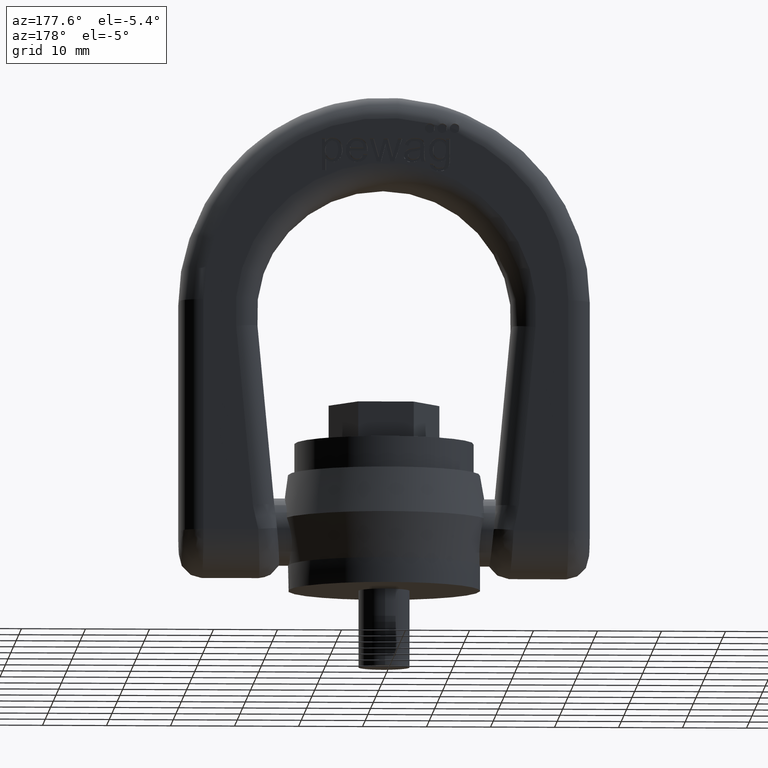
[diagram: clean part render]
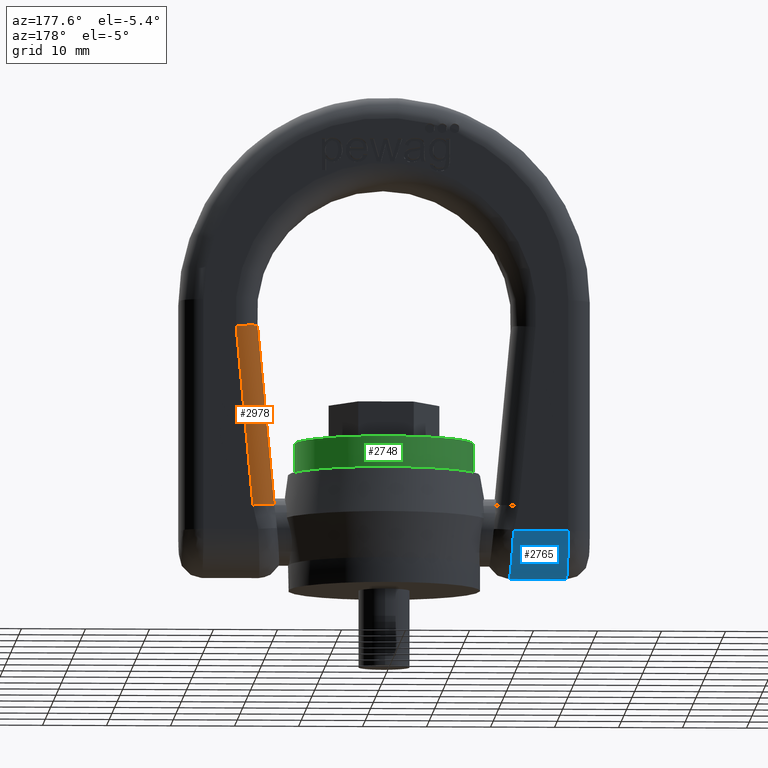
[diagram: same view with three faces highlighted in distinct colors, each labeled with its STEP entity id]
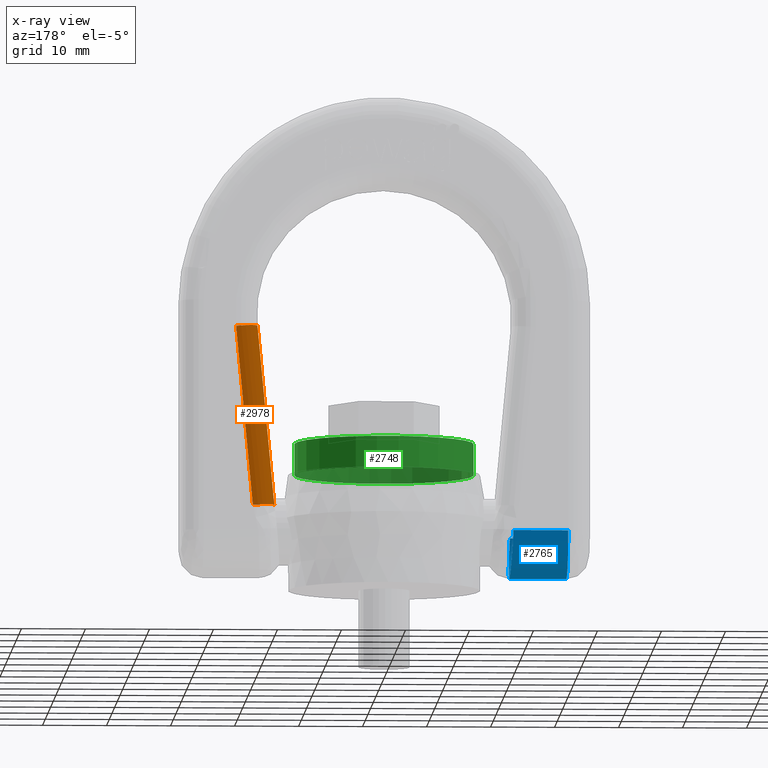
[diagram: x-ray of the same camera — body ghosted, the three highlighted faces saturated]
A machine part, auxiliary view with three faces highlighted in distinct colors.
The next image is the same camera in x-ray (body ghosted, the three faces saturated) — at least one of them is partly hidden behind the body in this view.
Their STEP definitions:

[orange] entity #2978 — the highlighted cylindrical surface (edge-blend (fillet) strip) has radius 3.5 mm, axis along (0.093, -0, 0.9957).
#1840=LINE('',#7093,#2122);
#1934=LINE('',#8275,#2261);
#2122=VECTOR('',#6011,1.);
#2261=VECTOR('',#6266,1.);
#2624=FACE_OUTER_BOUND('',#3334,.T.);
#2978=ADVANCED_FACE('',(#2624),#3001,.T.);
#3001=CYLINDRICAL_SURFACE('',#5820,3.5);
#3334=EDGE_LOOP('',(#4537,#4538,#4539,#4540));
#4537=ORIENTED_EDGE('',*,*,#5553,.T.);
#4538=ORIENTED_EDGE('',*,*,#5094,.F.);
#4539=ORIENTED_EDGE('',*,*,#5555,.F.);
#4540=ORIENTED_EDGE('',*,*,#5305,.F.);
#4675=VERTEX_POINT('',#7088);
#4677=VERTEX_POINT('',#7094);
#4803=VERTEX_POINT('',#8274);
#4804=VERTEX_POINT('',#8276);
#5094=EDGE_CURVE('',#4675,#4677,#1840,.T.);
#5305=EDGE_CURVE('',#4803,#4804,#1934,.T.);
#5553=EDGE_CURVE('',#4803,#4677,#5611,.T.);
#5555=EDGE_CURVE('',#4804,#4675,#5613,.T.);
#5611=CIRCLE('',#5817,3.5);
#5613=CIRCLE('',#5819,3.5);
#5817=AXIS2_PLACEMENT_3D('',#9662,#6600,#6601);
#5819=AXIS2_PLACEMENT_3D('',#9700,#6604,#6605);
#5820=AXIS2_PLACEMENT_3D('',#9701,#6606,#6607);
#6011=DIRECTION('',(-0.0930218178345941,2.17941815051107E-16,-0.995664070561325));
#6266=DIRECTION('',(0.0930218178345941,-2.17941815051107E-16,0.995664070561325));
#6600=DIRECTION('',(0.0930218178345929,-2.17941815051104E-16,0.995664070561325));
#6601=DIRECTION('',(-0.995664070561325,0.,0.0930218178345929));
#6604=DIRECTION('',(0.0930218178345945,-1.84419578486525E-16,0.995664070561325));
#6605=DIRECTION('',(0.995664070561325,0.,-0.0930218178345944));
#6606=DIRECTION('',(0.0930218178345941,-2.17941815051107E-16,0.995664070561325));
#6607=DIRECTION('',(0.995664070561325,0.,-0.0930218178345944));
#7088=CARTESIAN_POINT('',(19.9132814112265,3.49999999999994,41.1395636433081));
#7093=CARTESIAN_POINT('',(19.9132814112265,3.49999999999994,41.1395636433081));
#7094=CARTESIAN_POINT('',(17.2901859316003,3.49999999999995,13.0631189606247));
#8274=CARTESIAN_POINT('',(20.775010178565,6.99999999999995,12.7375425982036));
#8275=CARTESIAN_POINT('',(23.3981056581912,6.99999999999995,40.813987280887));
#8276=CARTESIAN_POINT('',(23.3981056581912,6.99999999999995,40.813987280887));
#9662=CARTESIAN_POINT('',(20.775010178565,3.49999999999995,12.7375425982036));
#9700=CARTESIAN_POINT('',(23.3981056581912,3.49999999999995,40.813987280887));
#9701=CARTESIAN_POINT('',(23.3981056581912,3.49999999999995,40.813987280887));

[blue] entity #2765 — the highlighted cylindrical surface (partial cylindrical patch) has radius 7 mm, axis along (-1, 0, 0).
#320=B_SPLINE_CURVE_WITH_KNOTS('',3,(#6735,#6736,#6737,#6738,#6739,#6740,
#6741,#6742,#6743,#6744),.UNSPECIFIED.,.F.,.F.,(4,2,2,2,4),(0.,0.25,0.5,
0.75,1.),.UNSPECIFIED.);
#1795=LINE('',#6732,#2077);
#1796=LINE('',#6746,#2078);
#2077=VECTOR('',#5930,1.);
#2078=VECTOR('',#5931,1.);
#2428=FACE_OUTER_BOUND('',#3096,.T.);
#2765=ADVANCED_FACE('',(#2428),#2985,.T.);
#2985=CYLINDRICAL_SURFACE('',#5650,6.99999999999996);
#3096=EDGE_LOOP('',(#3429,#3430,#3431,#3432));
#3429=ORIENTED_EDGE('',*,*,#4999,.F.);
#3430=ORIENTED_EDGE('',*,*,#5000,.T.);
#3431=ORIENTED_EDGE('',*,*,#5001,.F.);
#3432=ORIENTED_EDGE('',*,*,#5002,.T.);
#4585=VERTEX_POINT('',#6733);
#4586=VERTEX_POINT('',#6734);
#4587=VERTEX_POINT('',#6745);
#4588=VERTEX_POINT('',#6747);
#4999=EDGE_CURVE('',#4585,#4586,#1795,.T.);
#5000=EDGE_CURVE('',#4585,#4587,#320,.T.);
#5001=EDGE_CURVE('',#4588,#4587,#1796,.T.);
#5002=EDGE_CURVE('',#4588,#4586,#5566,.T.);
#5566=CIRCLE('',#5649,6.99999999999996);
#5649=AXIS2_PLACEMENT_3D('',#6748,#5932,#5933);
#5650=AXIS2_PLACEMENT_3D('',#6749,#5934,#5935);
#5930=DIRECTION('',(-1.,2.34291072916505E-15,8.40256683676266E-16));
#5931=DIRECTION('',(1.,0.,-8.40256683676266E-16));
#5932=DIRECTION('',(1.,0.,-4.83546613512699E-16));
#5933=DIRECTION('',(-4.95635278850519E-16,0.,-1.));
#5934=DIRECTION('',(-1.,1.16551733542192E-15,8.40256683676266E-16));
#5935=DIRECTION('',(-9.91270557701038E-16,-1.,0.));
#6732=CARTESIAN_POINT('',(-1.22103649750215E-14,7.,8.95000000000001));
#6733=CARTESIAN_POINT('',(-19.950753113985,7.00000000000005,8.95000000000002));
#6734=CARTESIAN_POINT('',(-28.5,7.00000000000007,8.95000000000003));
#6735=CARTESIAN_POINT('',(-19.950753113985,6.99999999999999,8.95000000000003));
#6736=CARTESIAN_POINT('',(-19.8519540217033,6.99999999999999,7.10257510705455));
#6737=CARTESIAN_POINT('',(-19.7541847453004,6.24161316817408,5.29206410229056));
#6738=CARTESIAN_POINT('',(-19.6137898898043,3.65767437544527,2.70823357245032));
#6739=CARTESIAN_POINT('',(-19.572150091763,1.84349047945092,1.94951405894923));
#6740=CARTESIAN_POINT('',(-19.572203324973,-1.84717901119788,1.95048642695327));
#6741=CARTESIAN_POINT('',(-19.6139277122954,-3.66041617913441,2.71076825953281));
#6742=CARTESIAN_POINT('',(-19.7540900984752,-6.23966594061746,5.29032402182644));
#6743=CARTESIAN_POINT('',(-19.8519540881459,-6.99999999999994,7.10257634945074));
#6744=CARTESIAN_POINT('',(-19.950753113985,-6.99999999999994,8.95000000000003));
#6745=CARTESIAN_POINT('',(-19.950753113985,-7.,8.95000000000002));
#6746=CARTESIAN_POINT('',(-2.86107400791768E-14,-7.,8.95000000000001));
#6747=CARTESIAN_POINT('',(-28.5,-7.,8.95000000000003));
#6748=CARTESIAN_POINT('',(-28.5,3.32172440595246E-14,8.95000000000003));
#6749=CARTESIAN_POINT('',(32.,-3.72965547335014E-14,8.94999999999998));

[green] entity #2748 — the highlighted cylindrical surface (bore or boss wall) has radius 14 mm, axis along (0, 0, -1).
#2748=ADVANCED_FACE('',(#3015,#3016),#2983,.T.);
#2983=CYLINDRICAL_SURFACE('',#5631,14.);
#3015=FACE_BOUND('',#3076,.T.);
#3016=FACE_BOUND('',#3077,.T.);
#3076=EDGE_LOOP('',(#3350));
#3077=EDGE_LOOP('',(#3351));
#3350=ORIENTED_EDGE('',*,*,#4958,.T.);
#3351=ORIENTED_EDGE('',*,*,#4957,.F.);
#4555=VERTEX_POINT('',#6634);
#4556=VERTEX_POINT('',#6637);
#4957=EDGE_CURVE('',#4555,#4555,#5563,.T.);
#4958=EDGE_CURVE('',#4556,#4556,#5564,.T.);
#5563=CIRCLE('',#5628,14.);
#5564=CIRCLE('',#5630,14.);
#5628=AXIS2_PLACEMENT_3D('',#6633,#5850,#5851);
#5630=AXIS2_PLACEMENT_3D('',#6636,#5854,#5855);
#5631=AXIS2_PLACEMENT_3D('',#6638,#5856,#5857);
#5850=DIRECTION('',(0.,0.,-1.));
#5851=DIRECTION('',(-1.,0.,0.));
#5854=DIRECTION('',(0.,0.,-1.));
#5855=DIRECTION('',(-1.,0.,0.));
#5856=DIRECTION('',(0.,0.,-1.));
#5857=DIRECTION('',(-1.,0.,0.));
#6633=CARTESIAN_POINT('',(0.,0.,18.1));
#6634=CARTESIAN_POINT('',(-14.,0.,18.1));
#6636=CARTESIAN_POINT('',(0.,0.,23.));
#6637=CARTESIAN_POINT('',(-14.,0.,23.));
#6638=CARTESIAN_POINT('',(0.,0.,0.));